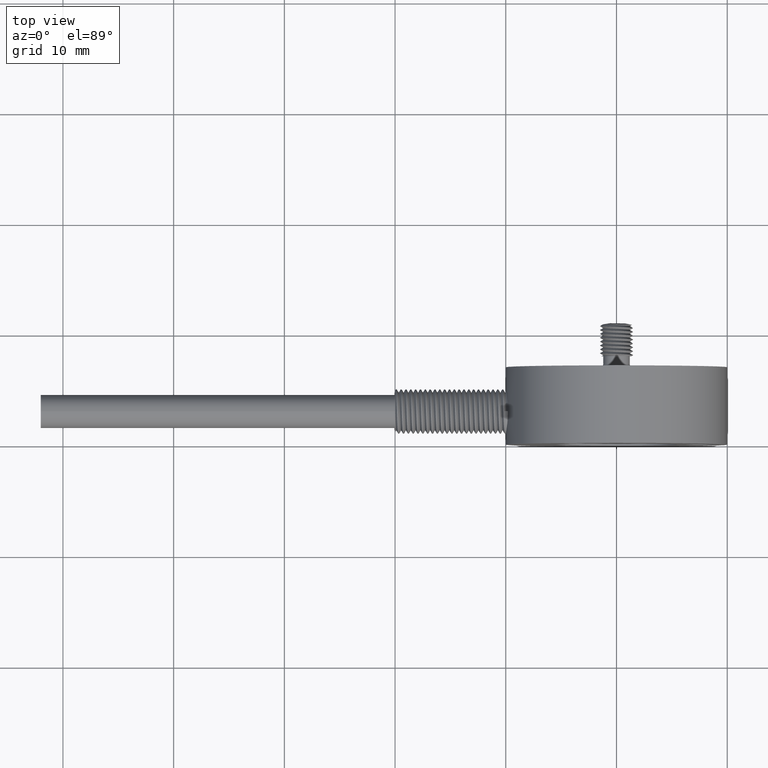
[diagram: clean part render]
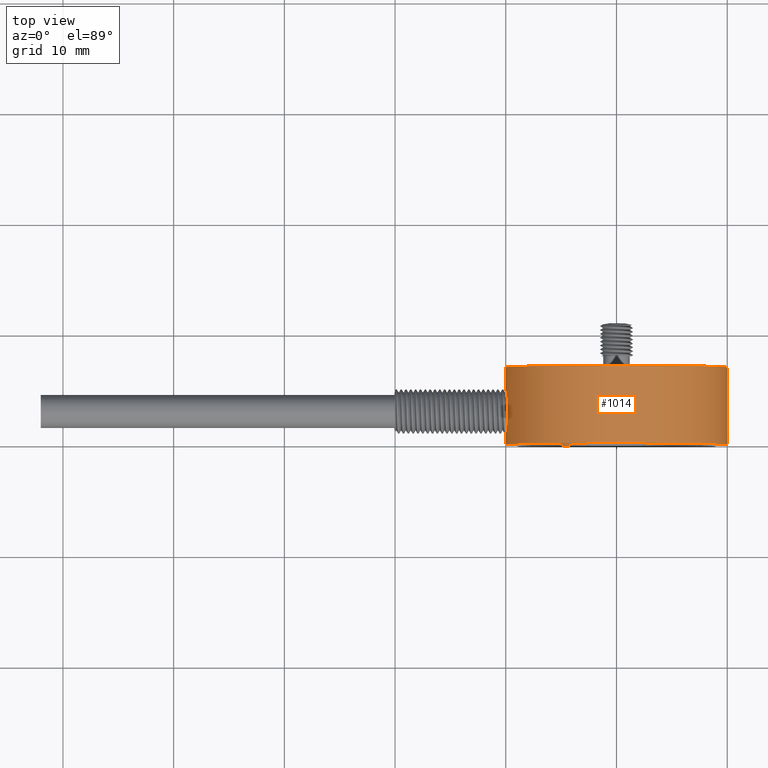
[diagram: same view with one face highlighted and labeled with its STEP entity id]
A machine part, top view. The second image highlights one B-rep face of the part: STEP entity #1014.
In plain terms, the highlighted cylindrical surface (bore or boss wall) has radius 10 mm, axis along (0, 1, 0).
Its self-contained STEP definition (entity closure, byte-faithful):
#30=FACE_BOUND('',#141,.T.);
#83=FACE_OUTER_BOUND('',#140,.T.);
#140=EDGE_LOOP('',(#803,#804,#805,#806,#807,#808));
#141=EDGE_LOOP('',(#809,#810));
#192=CIRCLE('',#1116,10.);
#193=CIRCLE('',#1117,10.);
#194=CIRCLE('',#1118,10.);
#195=CIRCLE('',#1119,10.);
#259=B_SPLINE_CURVE_WITH_KNOTS('',3,(#3676,#3677,#3678,#3679,#3680,#3681,
#3682,#3683,#3684,#3685,#3686,#3687,#3688,#3689,#3690,#3691,#3692,#3693,
#3694,#3695,#3696,#3697,#3698,#3699,#3700),.UNSPECIFIED.,.F.,.F.,(4,2,2,
3,2,2,2,2,2,2,2,4),(1.02800449295017,1.05779284509095,1.13335189626899,
1.20891094744703,1.28446999862507,1.36002904980311,1.43558386705595,1.51113868430879,
1.58669350156163,1.66224831881447,1.7378073699925,1.81336642117054),
 .UNSPECIFIED.);
#260=B_SPLINE_CURVE_WITH_KNOTS('',3,(#3777,#3778,#3779,#3780,#3781,#3782,
#3783,#3784,#3785,#3786,#3787,#3788,#3789,#3790),.UNSPECIFIED.,.F.,.F.,
(4,2,2,2,2,2,4),(-0.423549019226659,-0.377782554114597,-0.302227736861757,
-0.226672919608917,-0.151118102356078,-0.0755590511780388,0.),
 .UNSPECIFIED.);
#310=LINE('',#3773,#355);
#355=VECTOR('',#1323,10.);
#431=VERTEX_POINT('',#3650);
#432=VERTEX_POINT('',#3675);
#458=VERTEX_POINT('',#3768);
#459=VERTEX_POINT('',#3769);
#460=VERTEX_POINT('',#3772);
#461=VERTEX_POINT('',#3774);
#568=EDGE_CURVE('',#432,#431,#259,.F.);
#601=EDGE_CURVE('',#458,#459,#192,.T.);
#602=EDGE_CURVE('',#459,#458,#193,.T.);
#603=EDGE_CURVE('',#459,#460,#310,.T.);
#604=EDGE_CURVE('',#460,#461,#194,.T.);
#605=EDGE_CURVE('',#461,#460,#195,.T.);
#606=EDGE_CURVE('',#431,#432,#260,.T.);
#803=ORIENTED_EDGE('',*,*,#601,.F.);
#804=ORIENTED_EDGE('',*,*,#602,.F.);
#805=ORIENTED_EDGE('',*,*,#603,.T.);
#806=ORIENTED_EDGE('',*,*,#604,.T.);
#807=ORIENTED_EDGE('',*,*,#605,.T.);
#808=ORIENTED_EDGE('',*,*,#603,.F.);
#809=ORIENTED_EDGE('',*,*,#606,.T.);
#810=ORIENTED_EDGE('',*,*,#568,.T.);
#969=CYLINDRICAL_SURFACE('',#1115,10.);
#1014=ADVANCED_FACE('',(#83,#30),#969,.T.);
#1115=AXIS2_PLACEMENT_3D('',#3767,#1317,#1318);
#1116=AXIS2_PLACEMENT_3D('',#3770,#1319,#1320);
#1117=AXIS2_PLACEMENT_3D('',#3771,#1321,#1322);
#1118=AXIS2_PLACEMENT_3D('',#3775,#1324,#1325);
#1119=AXIS2_PLACEMENT_3D('',#3776,#1326,#1327);
#1317=DIRECTION('center_axis',(0.,1.,0.));
#1318=DIRECTION('ref_axis',(0.,0.,1.));
#1319=DIRECTION('center_axis',(0.,1.,0.));
#1320=DIRECTION('ref_axis',(0.,0.,1.));
#1321=DIRECTION('center_axis',(0.,1.,0.));
#1322=DIRECTION('ref_axis',(0.,0.,1.));
#1323=DIRECTION('',(0.,-1.,0.));
#1324=DIRECTION('center_axis',(0.,1.,0.));
#1325=DIRECTION('ref_axis',(0.,0.,1.));
#1326=DIRECTION('center_axis',(0.,1.,0.));
#1327=DIRECTION('ref_axis',(0.,0.,1.));
#3650=CARTESIAN_POINT('',(-9.92960557864745,4.61154179204469,-1.18445474902733));
#3675=CARTESIAN_POINT('',(-9.79795897113272,3.,2.));
#3676=CARTESIAN_POINT('Ctrl Pts',(-9.92960557864745,4.61154179204469,-1.18445474902733));
#3677=CARTESIAN_POINT('Ctrl Pts',(-9.91971405569428,4.55059461587961,-1.26737807014009));
#3678=CARTESIAN_POINT('Ctrl Pts',(-9.90947441006358,4.48406987653649,-1.3443572482097));
#3679=CARTESIAN_POINT('Ctrl Pts',(-9.87418170203865,4.23702092036201,-1.59140620438418));
#3680=CARTESIAN_POINT('Ctrl Pts',(-9.84708301585542,4.01258401006011,-1.74521083529677));
#3681=CARTESIAN_POINT('Ctrl Pts',(-9.80867753236894,3.52003555432378,-1.94952559249723));
#3682=CARTESIAN_POINT('Ctrl Pts',(-9.79795897113272,3.2518635039268,-2.));
#3683=CARTESIAN_POINT('Ctrl Pts',(-9.79795897113272,3.,-2.));
#3684=CARTESIAN_POINT('Ctrl Pts',(-9.79795897113272,2.7481364960732,-2.));
#3685=CARTESIAN_POINT('Ctrl Pts',(-9.80867753236894,2.47996444567622,-1.94952559249723));
#3686=CARTESIAN_POINT('Ctrl Pts',(-9.84708301585542,1.98741598993989,-1.74521083529676));
#3687=CARTESIAN_POINT('Ctrl Pts',(-9.87418170203865,1.76297907963799,-1.59140620438418));
#3688=CARTESIAN_POINT('Ctrl Pts',(-9.92480675276637,1.408603724544,-1.23703084929019));
#3689=CARTESIAN_POINT('Ctrl Pts',(-9.95166694303727,1.25479131691049,-1.01258972239525));
#3690=CARTESIAN_POINT('Ctrl Pts',(-9.98952377294163,1.05047091552833,-0.52002661216373));
#3691=CARTESIAN_POINT('Ctrl Pts',(-10.,1.,-0.251849390842799));
#3692=CARTESIAN_POINT('Ctrl Pts',(-10.,1.,0.251849390842799));
#3693=CARTESIAN_POINT('Ctrl Pts',(-9.98952377294163,1.05047091552833,0.52002661216373));
#3694=CARTESIAN_POINT('Ctrl Pts',(-9.95166694303727,1.25479131691049,1.01258972239525));
#3695=CARTESIAN_POINT('Ctrl Pts',(-9.92480675276637,1.408603724544,1.23703084929019));
#3696=CARTESIAN_POINT('Ctrl Pts',(-9.87418170203865,1.76297907963799,1.59140620438418));
#3697=CARTESIAN_POINT('Ctrl Pts',(-9.84708301585542,1.98741598993989,1.74521083529677));
#3698=CARTESIAN_POINT('Ctrl Pts',(-9.80867753236894,2.47996444567622,1.94952559249723));
#3699=CARTESIAN_POINT('Ctrl Pts',(-9.79795897113272,2.7481364960732,2.));
#3700=CARTESIAN_POINT('Ctrl Pts',(-9.79795897113272,3.,2.));
#3767=CARTESIAN_POINT('Origin',(0.,17.1191637591592,0.));
#3768=CARTESIAN_POINT('',(0.,7.,10.));
#3769=CARTESIAN_POINT('',(-1.22464679914735E-15,7.,-10.));
#3770=CARTESIAN_POINT('Origin',(0.,7.,0.));
#3771=CARTESIAN_POINT('Origin',(0.,7.,0.));
#3772=CARTESIAN_POINT('',(-1.22464679914735E-15,0.,-10.));
#3773=CARTESIAN_POINT('',(-1.22464679914735E-15,17.1191637591592,-10.));
#3774=CARTESIAN_POINT('',(0.,0.,10.));
#3775=CARTESIAN_POINT('Origin',(0.,0.,0.));
#3776=CARTESIAN_POINT('Origin',(0.,0.,0.));
#3777=CARTESIAN_POINT('Ctrl Pts',(-9.92960557864745,4.61154179204469,-1.18445474902733));
#3778=CARTESIAN_POINT('Ctrl Pts',(-9.94480279526427,4.70518029874877,-1.05705235816166));
#3779=CARTESIAN_POINT('Ctrl Pts',(-9.95912968744674,4.78548651240084,-0.915490398271205));
#3780=CARTESIAN_POINT('Ctrl Pts',(-9.98952377294163,4.94952908447167,-0.52002661216373));
#3781=CARTESIAN_POINT('Ctrl Pts',(-10.,5.,-0.251849390842799));
#3782=CARTESIAN_POINT('Ctrl Pts',(-10.,5.,0.2518493908428));
#3783=CARTESIAN_POINT('Ctrl Pts',(-9.98952377294163,4.94952908447167,0.520026612163731));
#3784=CARTESIAN_POINT('Ctrl Pts',(-9.95166694303727,4.74520868308952,1.01258972239525));
#3785=CARTESIAN_POINT('Ctrl Pts',(-9.92480675276637,4.591396275456,1.23703084929019));
#3786=CARTESIAN_POINT('Ctrl Pts',(-9.87418170203865,4.23702092036201,1.59140620438418));
#3787=CARTESIAN_POINT('Ctrl Pts',(-9.84708301585542,4.01258401006011,1.74521083529677));
#3788=CARTESIAN_POINT('Ctrl Pts',(-9.80867753236894,3.52003555432378,1.94952559249723));
#3789=CARTESIAN_POINT('Ctrl Pts',(-9.79795897113272,3.2518635039268,2.));
#3790=CARTESIAN_POINT('Ctrl Pts',(-9.79795897113272,3.,2.));